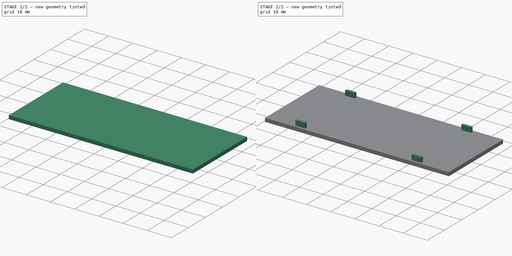
[diagram: build sequence overview — one tinted view per stage of 2, left to right]
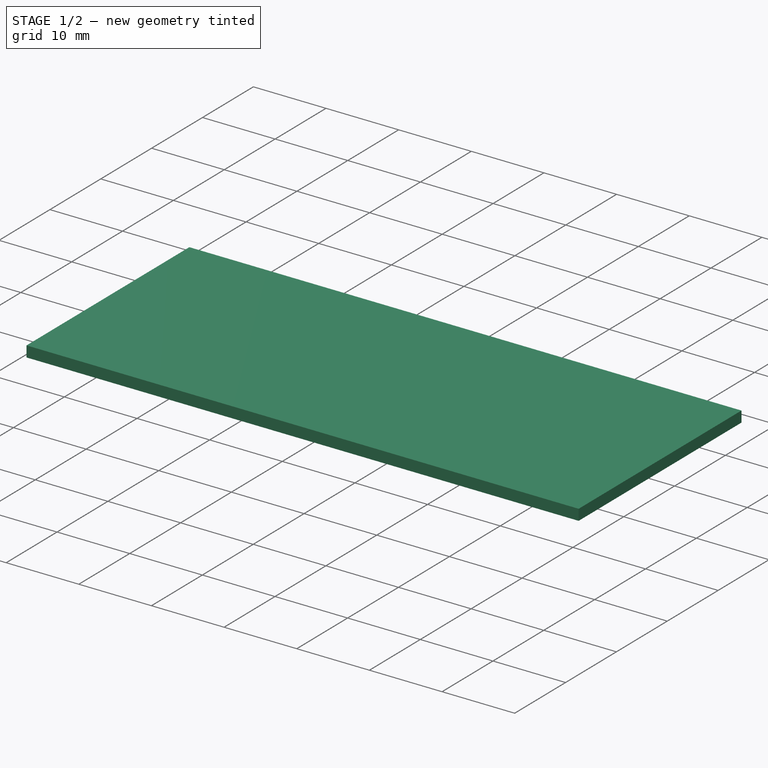
[diagram: stage 1 of 2 — iso view after this stage's code; geometry added in this stage tinted green]
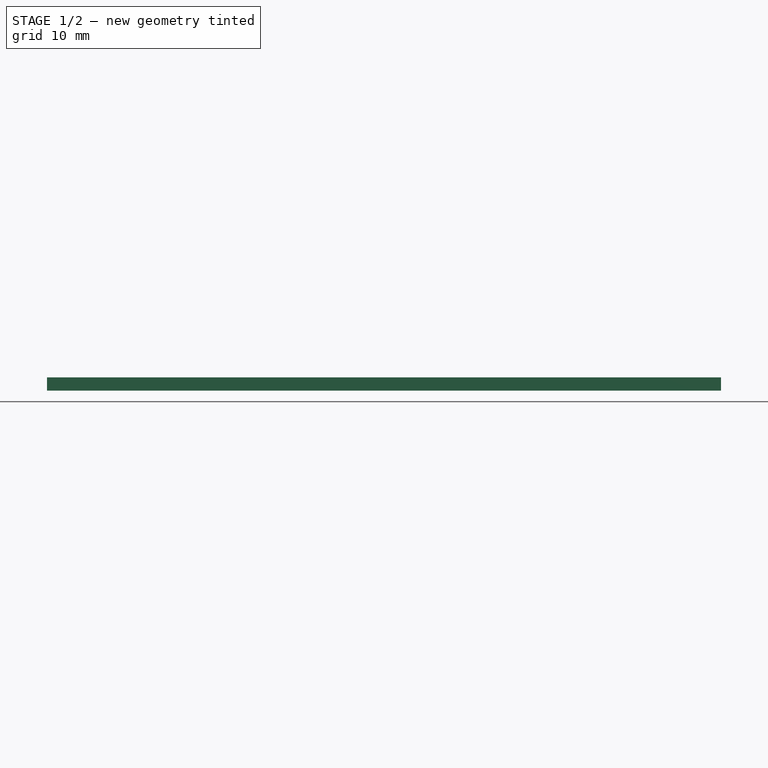
[diagram: stage 1 of 2 — front view after this stage's code; geometry added in this stage tinted green]
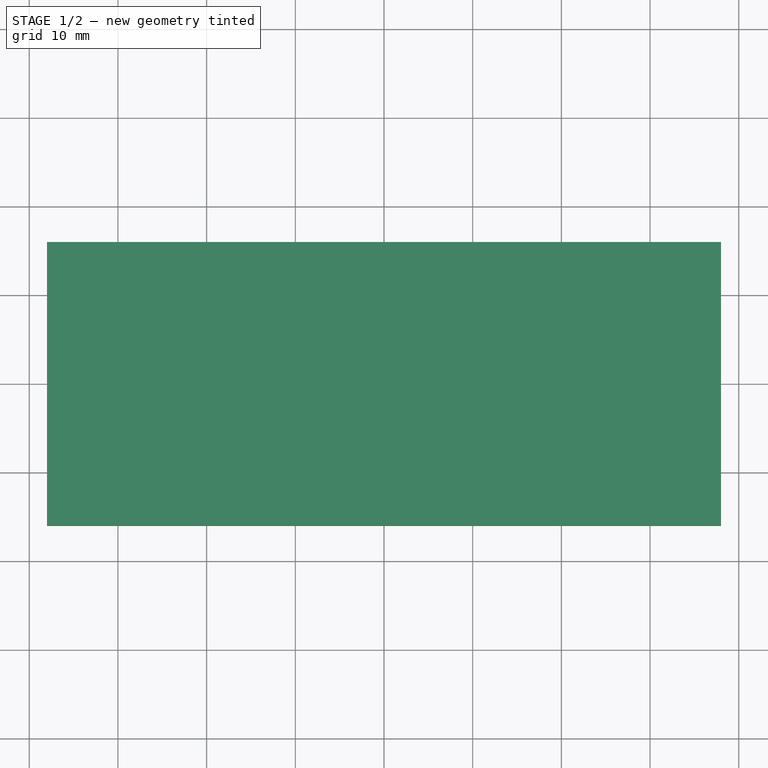
[diagram: stage 1 of 2 — top view after this stage's code; geometry added in this stage tinted green]
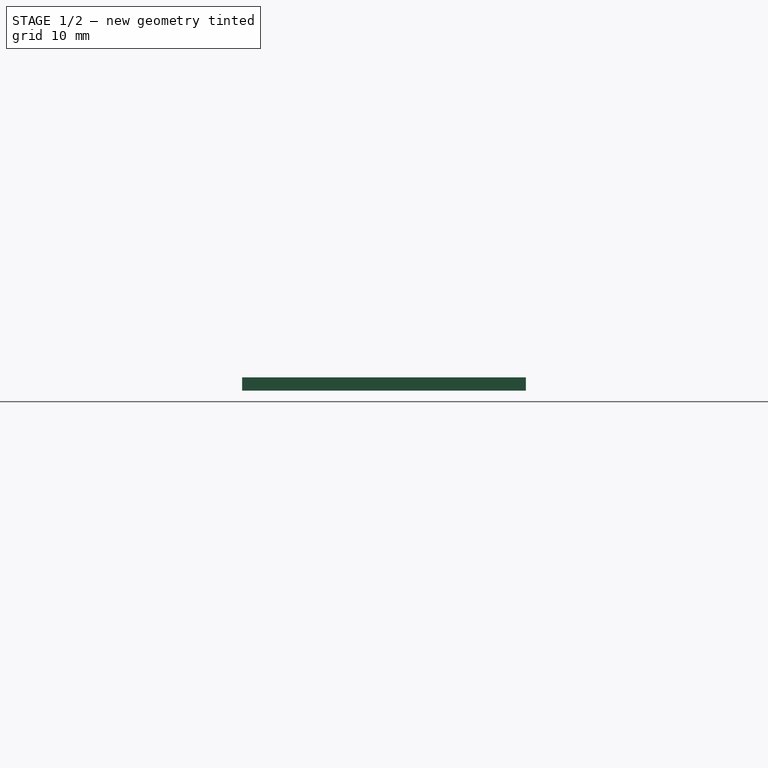
[diagram: stage 1 of 2 — right view after this stage's code; geometry added in this stage tinted green]
FCSTD DOCUMENT  (FreeCAD 1.1R14555 (Git shallow))
Label: Model
License: All rights reserved
LicenseURL: https://en.wikipedia.org/wiki/All_rights_reserved
objects: Sketcher::SketchObject×2, PartDesign::Pad×2, App::Point×1, PartDesign::Body×1
note: 11 computed .brp shape members not serialized (recipe doc carries the construction recipe); baked Part::Feature solids carry a one-line shape summary decoded from their .brp

FEATURE [App::Point] Origin001
  Role = Origin
FEATURE [Sketcher::SketchObject] Sketch
  ArcFitTolerance = 1e-06
  AttachmentSupport = -> [Origin]
  ExternalTypes = [0]
  FullyConstrained = true
  MakeInternals = false
  MapMode = 5
  sketch-geometry (5):
    g0: LineSegment StartX=-38 StartY=-16 StartZ=0 EndX=38 EndY=-16 EndZ=0
    g1: LineSegment StartX=38 StartY=-16 StartZ=0 EndX=38 EndY=16 EndZ=0
    g2: LineSegment StartX=38 StartY=16 StartZ=0 EndX=-38 EndY=16 EndZ=0
    g3: LineSegment StartX=-38 StartY=16 StartZ=0 EndX=-38 EndY=-16 EndZ=0
    g4: GeomPoint [constr] X=0 Y=0 Z=0
  constraints (12):
    c: Coincident(g0,g1)
    c: Coincident(g1,g2)
    c: Coincident(g2,g3)
    c: Coincident(g3,g0)
    c: Horizontal(g0)
    c: Horizontal(g2)
    c: Vertical(g1)
    c: Vertical(g3)
    c: Symmetric(g2,g0,g4)
    c: Distance(g1,g3) = 76
    c: Distance(g0,g2) = 32
    c: Coincident(g4,g-1)
FEATURE [PartDesign::Pad] Pad
  Direction = (0,0,1)
  Length = 1.5
  Length2 = 10
  Profile = -> Sketch
  ReferenceAxis = -> Sketch [N_Axis]
  SideType = 0
  Suppressed = false
  Type = 0
  Type2 = 0
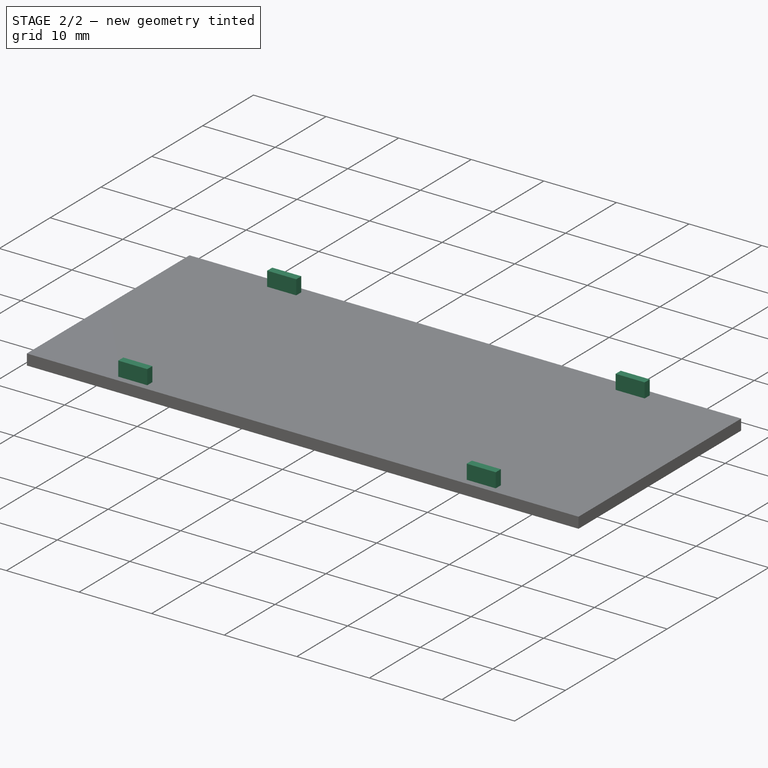
[diagram: stage 2 of 2 — iso view after this stage's code; geometry added in this stage tinted green]
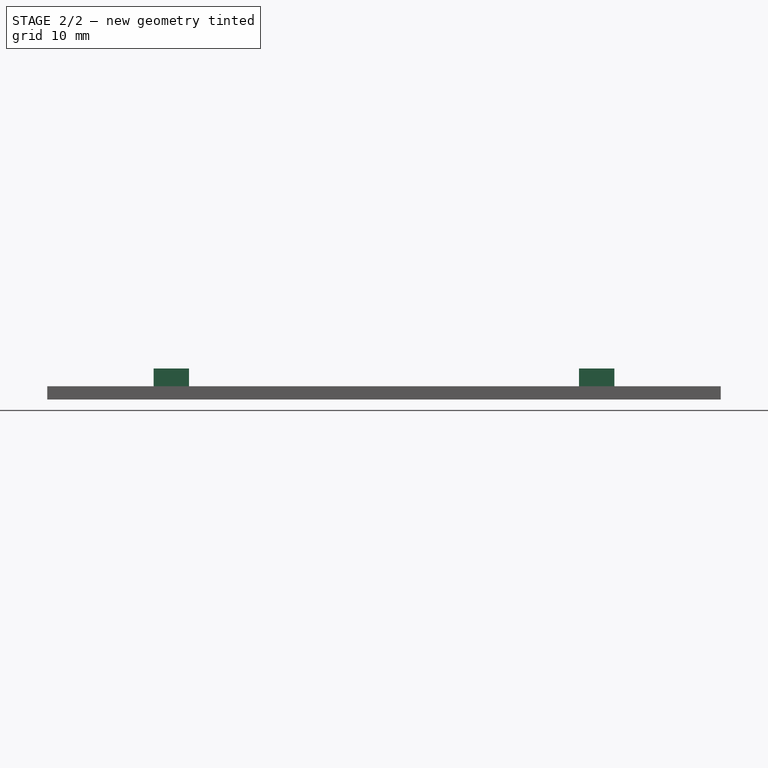
[diagram: stage 2 of 2 — front view after this stage's code; geometry added in this stage tinted green]
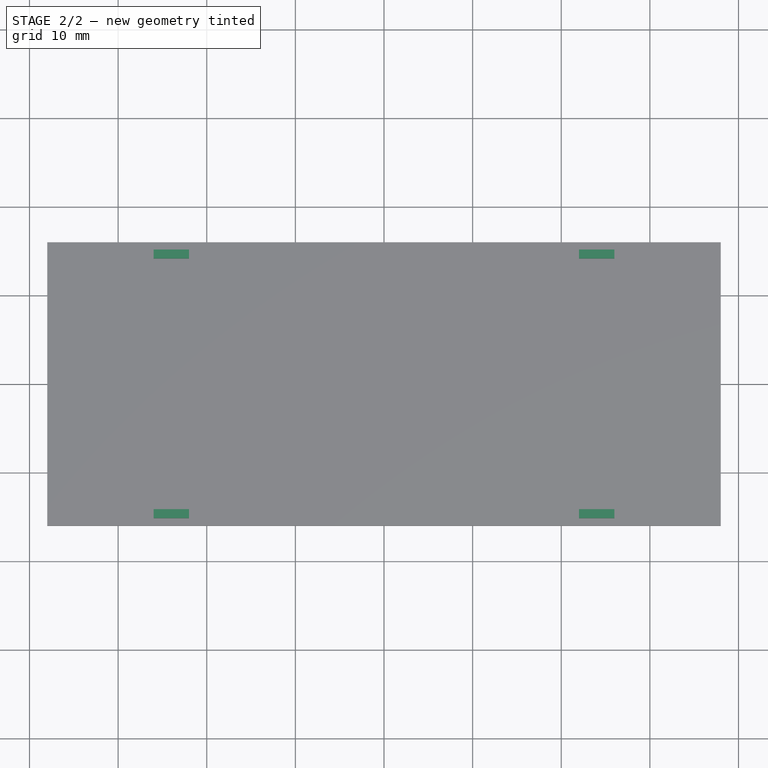
[diagram: stage 2 of 2 — top view after this stage's code; geometry added in this stage tinted green]
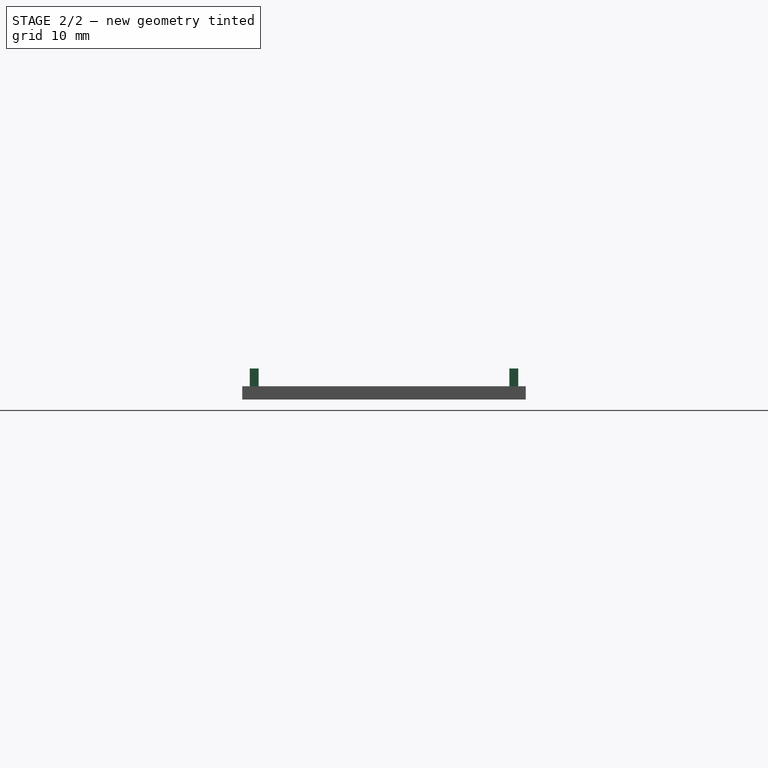
[diagram: stage 2 of 2 — right view after this stage's code; geometry added in this stage tinted green]
FEATURE [Sketcher::SketchObject] Sketch001
  ArcFitTolerance = 1e-06
  AttachmentSupport = -> [Pad]
  ExternalTypes = [0,0]
  FullyConstrained = false
  MakeInternals = false
  MapMode = 5
  Placement = pos=(0,0,1.5) rot=(0,0,1;0rad)
  sketch-geometry (17):
    g0: LineSegment StartX=-26 StartY=15.15 StartZ=0 EndX=-26 EndY=14.15 EndZ=0
    g1: LineSegment StartX=-26 StartY=14.15 StartZ=0 EndX=-22 EndY=14.15 EndZ=0
    g2: LineSegment StartX=-22 StartY=14.15 StartZ=0 EndX=-22 EndY=15.15 EndZ=0
    g3: LineSegment StartX=-22 StartY=15.15 StartZ=0 EndX=-26 EndY=15.15 EndZ=0
    g4: GeomPoint [constr] X=-24 Y=14.65 Z=0
    g5: LineSegment StartX=26 StartY=15.15 StartZ=0 EndX=26 EndY=14.15 EndZ=0
    g6: LineSegment StartX=22 StartY=15.15 StartZ=0 EndX=26 EndY=15.15 EndZ=0
    g7: LineSegment StartX=22 StartY=14.15 StartZ=0 EndX=22 EndY=15.15 EndZ=0
    g8: LineSegment StartX=26 StartY=14.15 StartZ=0 EndX=22 EndY=14.15 EndZ=0
    g9: LineSegment StartX=-22 StartY=-15.15 StartZ=0 EndX=-26 EndY=-15.15 EndZ=0
    g10: LineSegment StartX=-26 StartY=-15.15 StartZ=0 EndX=-26 EndY=-14.15 EndZ=0
    g11: LineSegment StartX=-26 StartY=-14.15 StartZ=0 EndX=-22 EndY=-14.15 EndZ=0
    g12: LineSegment StartX=-22 StartY=-14.15 StartZ=0 EndX=-22 EndY=-15.15 EndZ=0
    g13: LineSegment StartX=22 StartY=-15.15 StartZ=0 EndX=26 EndY=-15.15 EndZ=0
    g14: LineSegment StartX=22 StartY=-14.15 StartZ=0 EndX=22 EndY=-15.15 EndZ=0
    g15: LineSegment StartX=26 StartY=-14.15 StartZ=0 EndX=22 EndY=-14.15 EndZ=0
    g16: LineSegment StartX=26 StartY=-15.15 StartZ=0 EndX=26 EndY=-14.15 EndZ=0
  constraints (40):
    c: Coincident(g0,g1)
    c: Coincident(g1,g2)
    c: Coincident(g2,g3)
    c: Coincident(g3,g0)
    c: Vertical(g0)
    c: Vertical(g2)
    c: Horizontal(g1)
    c: Horizontal(g3)
    c: Symmetric(g2,g0,g4)
    c: DistanceY(g0,g0) = 1
    c: Distance(g3,g3) = 4
    c: DistanceX(g2,g-1) = 22
    c: DistanceY(g-1,g1) = 14.15
    c: Coincident(g5,g8)
    c: Coincident(g8,g7)
    c: Coincident(g7,g6)
    c: Coincident(g6,g5)
    c: Vertical(g5)
    c: Vertical(g7)
    c: Horizontal(g8)
    c: Horizontal(g6)
    c: Distance(g6,g6) = 4
    c: Coincident(g10,g11)
    c: Coincident(g11,g12)
    c: Coincident(g12,g9)
    c: Coincident(g9,g10)
    c: Vertical(g10)
    c: Vertical(g12)
    c: Horizontal(g11)
    c: Horizontal(g9)
    c: Distance(g9,g9) = 4
    c: Coincident(g16,g15)
    c: Coincident(g15,g14)
    c: Coincident(g14,g13)
    c: Coincident(g13,g16)
    c: Vertical(g16)
    c: Vertical(g14)
    c: Horizontal(g15)
    c: Horizontal(g13)
    c: Distance(g13,g13) = 4
FEATURE [PartDesign::Pad] Pad001
  BaseFeature = -> Pad
  Direction = (0,0,1)
  Length = 2
  Length2 = 10
  Profile = -> Sketch001
  ReferenceAxis = -> Sketch001 [N_Axis]
  SideType = 0
  Suppressed = false
  Type = 0
  Type2 = 0
FEATURE [PartDesign::Body] Body
  AllowCompound = false
  Group = -> [Sketch,Pad,Sketch001,Pad001]
  Origin = -> Origin
  Tip = -> Pad001
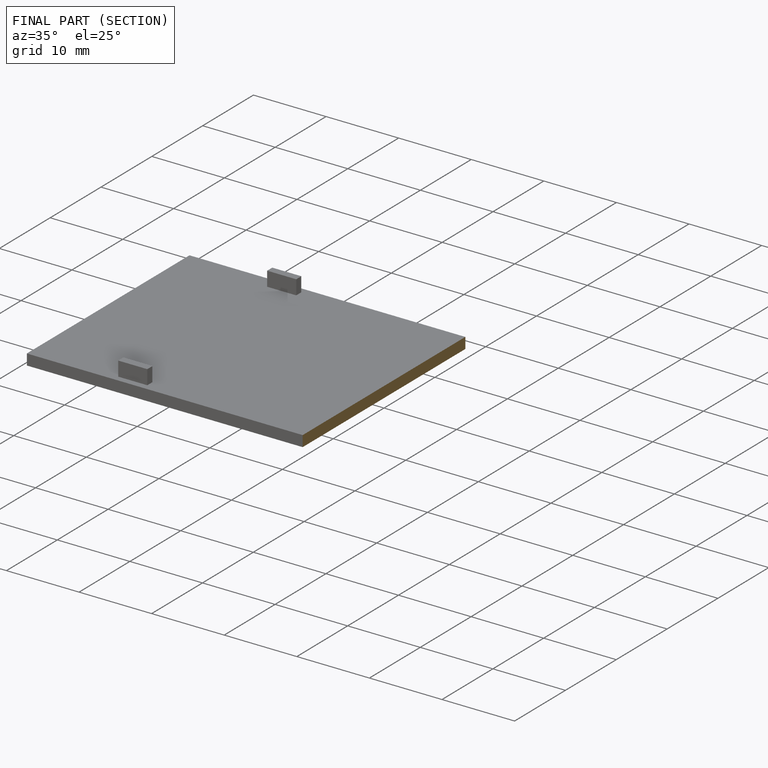
[diagram: finished part — half-section view (interior)]
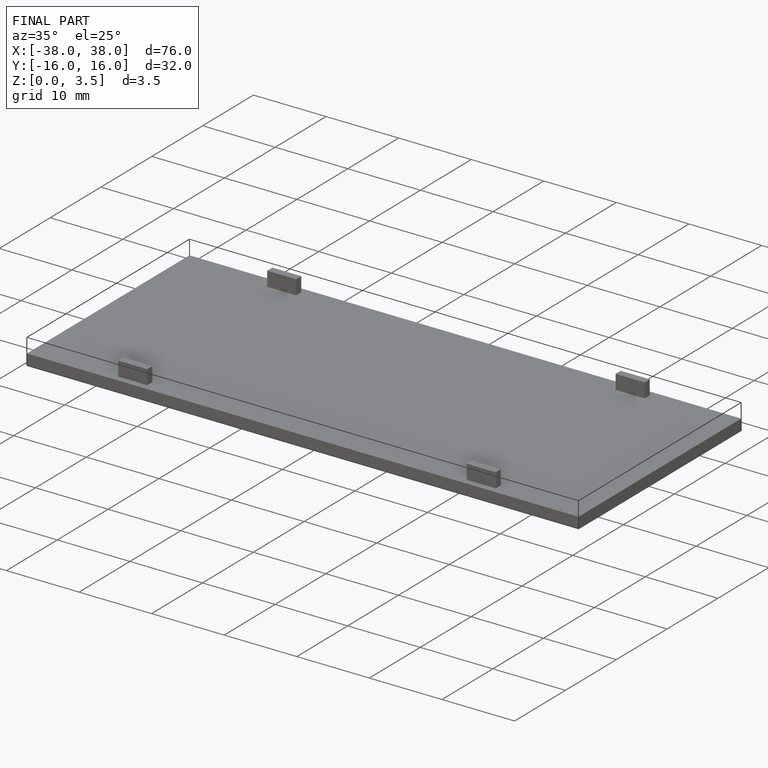
[diagram: finished part — iso view with bounding-box wireframe]
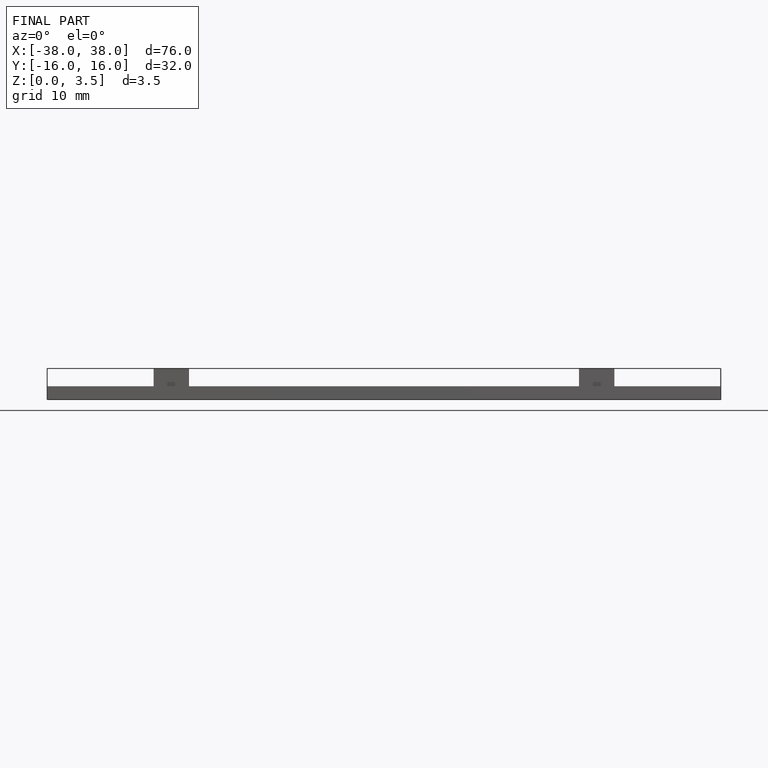
[diagram: finished part — front view with bounding-box wireframe]
